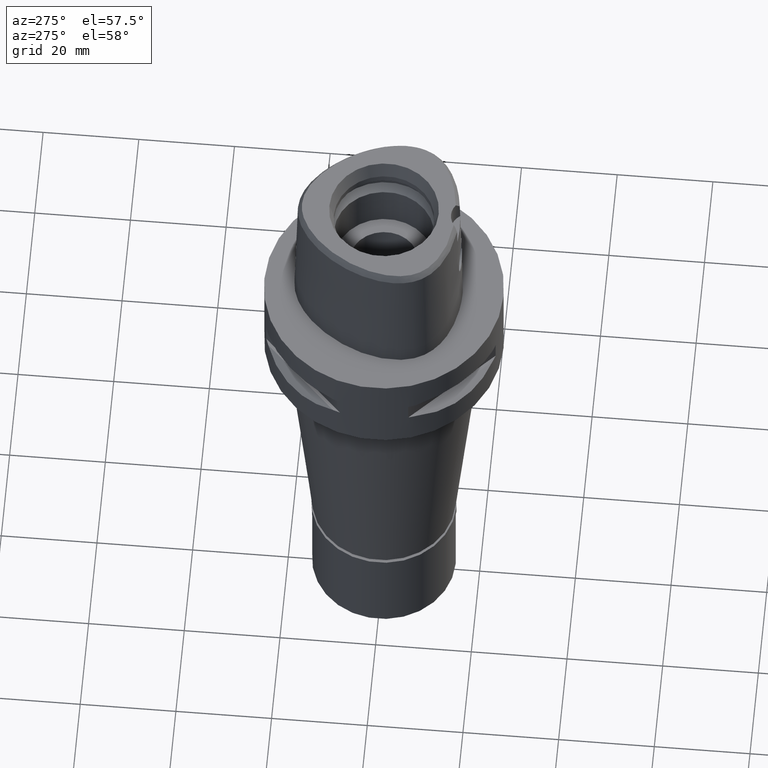
[diagram: clean part render]
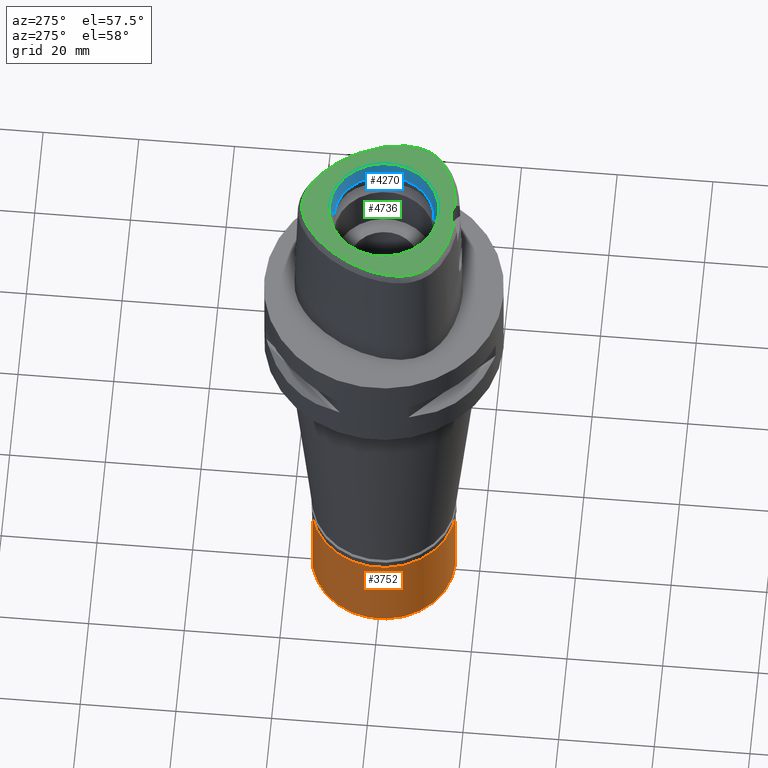
[diagram: same view with three faces highlighted in distinct colors, each labeled with its STEP entity id]
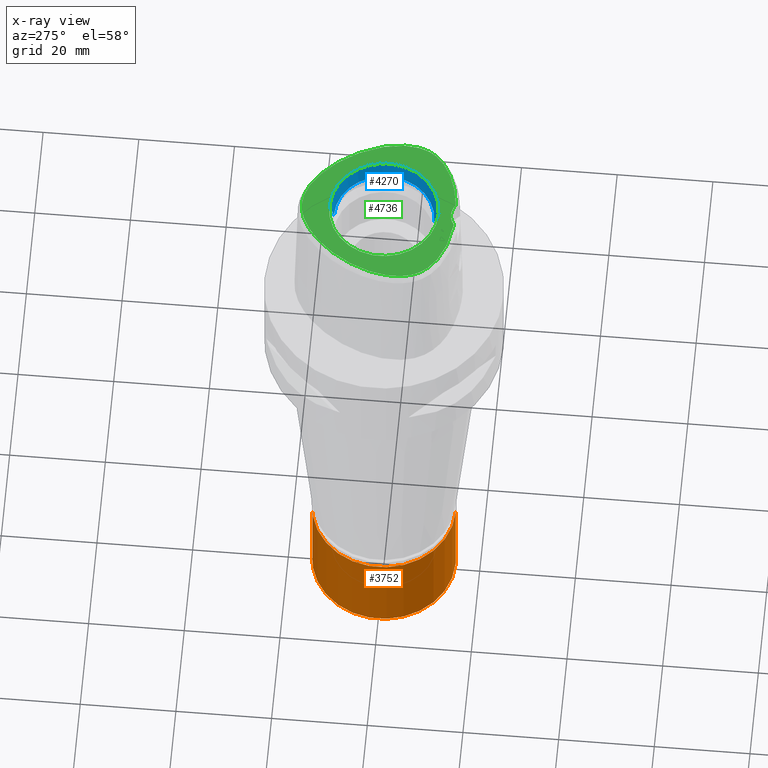
[diagram: x-ray of the same camera — body ghosted, the three highlighted faces saturated]
A machine part, auxiliary view with three faces highlighted in distinct colors.
The next image is the same camera in x-ray (body ghosted, the three faces saturated) — at least one of them is partly hidden behind the body in this view.
Their STEP definitions:

[orange] entity #3752 — the highlighted cylindrical surface (partial cylindrical patch) has radius 15 mm, axis along (0, 0, -1).
#308 = ORIENTED_EDGE ( 'NONE', *, *, #2338, .T. ) ;
#319 = ORIENTED_EDGE ( 'NONE', *, *, #4921, .T. ) ;
#386 = CIRCLE ( 'NONE', #697, 15.00000000000000000 ) ;
#595 = CARTESIAN_POINT ( 'NONE',  ( 0.0000000000000000000, 15.00000000000000000, -2.000000000000000000 ) ) ;
#616 = CARTESIAN_POINT ( 'NONE',  ( 0.0000000000000000000, 0.0000000000000000000, -22.00000000000000000 ) ) ;
#697 = AXIS2_PLACEMENT_3D ( 'NONE', #3966, #3538, #1699 ) ;
#732 = CYLINDRICAL_SURFACE ( 'NONE', #1093, 15.00000000000000000 ) ;
#759 = ORIENTED_EDGE ( 'NONE', *, *, #2461, .F. ) ;
#985 = DIRECTION ( 'NONE',  ( 0.0000000000000000000, 1.000000000000000000, 0.0000000000000000000 ) ) ;
#1093 = AXIS2_PLACEMENT_3D ( 'NONE', #1510, #4566, #2600 ) ;
#1228 = CARTESIAN_POINT ( 'NONE',  ( 0.0000000000000000000, 15.00000000000000000, -2.000000000000000000 ) ) ;
#1417 = VERTEX_POINT ( 'NONE', #3247 ) ;
#1510 = CARTESIAN_POINT ( 'NONE',  ( 0.0000000000000000000, 0.0000000000000000000, 0.0000000000000000000 ) ) ;
#1588 = EDGE_CURVE ( 'NONE', #4164, #3711, #4229, .T. ) ;
#1699 = DIRECTION ( 'NONE',  ( 0.0000000000000000000, -1.000000000000000000, 0.0000000000000000000 ) ) ;
#1714 = LINE ( 'NONE', #3607, #3755 ) ;
#1778 = DIRECTION ( 'NONE',  ( 0.0000000000000000000, 0.0000000000000000000, 1.000000000000000000 ) ) ;
#1834 = FACE_OUTER_BOUND ( 'NONE', #2196, .T. ) ;
#2196 = EDGE_LOOP ( 'NONE', ( #2725, #759, #319, #308 ) ) ;
#2338 = EDGE_CURVE ( 'NONE', #3948, #4164, #4661, .T. ) ;
#2461 = EDGE_CURVE ( 'NONE', #1417, #3711, #1714, .T. ) ;
#2600 = DIRECTION ( 'NONE',  ( 0.0000000000000000000, -1.000000000000000000, 0.0000000000000000000 ) ) ;
#2657 = CARTESIAN_POINT ( 'NONE',  ( 0.0000000000000000000, -15.00000000000000000, -22.00000000000000000 ) ) ;
#2725 = ORIENTED_EDGE ( 'NONE', *, *, #1588, .T. ) ;
#2752 = DIRECTION ( 'NONE',  ( 0.0000000000000000000, 0.0000000000000000000, -1.000000000000000000 ) ) ;
#2851 = DIRECTION ( 'NONE',  ( 0.0000000000000000000, 0.0000000000000000000, -1.000000000000000000 ) ) ;
#3247 = CARTESIAN_POINT ( 'NONE',  ( 0.0000000000000000000, -15.00000000000000000, -2.000000000000000000 ) ) ;
#3538 = DIRECTION ( 'NONE',  ( 0.0000000000000000000, 0.0000000000000000000, -1.000000000000000000 ) ) ;
#3545 = CARTESIAN_POINT ( 'NONE',  ( 0.0000000000000000000, 15.00000000000000000, -22.00000000000000000 ) ) ;
#3607 = CARTESIAN_POINT ( 'NONE',  ( 0.0000000000000000000, -15.00000000000000000, -2.000000000000000000 ) ) ;
#3711 = VERTEX_POINT ( 'NONE', #2657 ) ;
#3752 = ADVANCED_FACE ( 'NONE', ( #1834 ), #732, .T. ) ;
#3755 = VECTOR ( 'NONE', #2851, 1000.000000000000000 ) ;
#3948 = VERTEX_POINT ( 'NONE', #595 ) ;
#3966 = CARTESIAN_POINT ( 'NONE',  ( 0.0000000000000000000, 0.0000000000000000000, -2.000000000000000000 ) ) ;
#4164 = VERTEX_POINT ( 'NONE', #3545 ) ;
#4229 = CIRCLE ( 'NONE', #4316, 15.00000000000000000 ) ;
#4316 = AXIS2_PLACEMENT_3D ( 'NONE', #616, #1778, #985 ) ;
#4566 = DIRECTION ( 'NONE',  ( 0.0000000000000000000, 0.0000000000000000000, -1.000000000000000000 ) ) ;
#4634 = VECTOR ( 'NONE', #2752, 1000.000000000000000 ) ;
#4661 = LINE ( 'NONE', #1228, #4634 ) ;
#4921 = EDGE_CURVE ( 'NONE', #1417, #3948, #386, .T. ) ;

[blue] entity #4270 — the highlighted conical surface has half-angle 15 deg.
#47 = VECTOR ( 'NONE', #1481, 1000.000000000000114 ) ;
#297 = CONICAL_SURFACE ( 'NONE', #860, 10.96891108674999948, 0.2617993877991000029 ) ;
#379 = DIRECTION ( 'NONE',  ( 0.0000000000000000000, 0.0000000000000000000, 1.000000000000000000 ) ) ;
#405 = DIRECTION ( 'NONE',  ( 0.0000000000000000000, -1.000000000000000000, 0.0000000000000000000 ) ) ;
#807 = VERTEX_POINT ( 'NONE', #2230 ) ;
#820 = VERTEX_POINT ( 'NONE', #3381 ) ;
#851 = CIRCLE ( 'NONE', #3006, 10.50000000000000000 ) ;
#860 = AXIS2_PLACEMENT_3D ( 'NONE', #1907, #3429, #1605 ) ;
#981 = ORIENTED_EDGE ( 'NONE', *, *, #3712, .T. ) ;
#1004 = VECTOR ( 'NONE', #3488, 1000.000000000000114 ) ;
#1345 = EDGE_LOOP ( 'NONE', ( #2988, #4929, #981, #4617 ) ) ;
#1401 = DIRECTION ( 'NONE',  ( 0.0000000000000000000, -1.000000000000000000, 0.0000000000000000000 ) ) ;
#1416 = CARTESIAN_POINT ( 'NONE',  ( 0.0000000000000000000, -11.43782217350000074, 30.00000000000000000 ) ) ;
#1468 = VERTEX_POINT ( 'NONE', #1416 ) ;
#1481 = DIRECTION ( 'NONE',  ( 0.0000000000000000000, -0.2588190451023999472, 0.9659258262891006197 ) ) ;
#1496 = CARTESIAN_POINT ( 'NONE',  ( 0.0000000000000000000, 10.50000000000000000, 26.50000000000000000 ) ) ;
#1605 = DIRECTION ( 'NONE',  ( 0.0000000000000000000, 1.000000000000000000, 0.0000000000000000000 ) ) ;
#1816 = AXIS2_PLACEMENT_3D ( 'NONE', #2132, #4834, #1401 ) ;
#1845 = VERTEX_POINT ( 'NONE', #3865 ) ;
#1907 = CARTESIAN_POINT ( 'NONE',  ( 0.0000000000000000000, 1.570609519905999910E-14, 28.25000000000000000 ) ) ;
#2132 = CARTESIAN_POINT ( 'NONE',  ( 0.0000000000000000000, 1.570609519905999910E-14, 30.00000000000000000 ) ) ;
#2230 = CARTESIAN_POINT ( 'NONE',  ( 0.0000000000000000000, 11.43782217350000074, 30.00000000000000000 ) ) ;
#2921 = EDGE_CURVE ( 'NONE', #1845, #807, #4248, .T. ) ;
#2988 = ORIENTED_EDGE ( 'NONE', *, *, #2921, .F. ) ;
#3006 = AXIS2_PLACEMENT_3D ( 'NONE', #3838, #379, #405 ) ;
#3381 = CARTESIAN_POINT ( 'NONE',  ( 0.0000000000000000000, -10.50000000000000000, 26.50000000000000000 ) ) ;
#3383 = CARTESIAN_POINT ( 'NONE',  ( 0.0000000000000000000, -10.50000000000000000, 26.50000000000000000 ) ) ;
#3429 = DIRECTION ( 'NONE',  ( 0.0000000000000000000, 0.0000000000000000000, 1.000000000000000000 ) ) ;
#3442 = EDGE_CURVE ( 'NONE', #1468, #807, #4534, .T. ) ;
#3488 = DIRECTION ( 'NONE',  ( 0.0000000000000000000, 0.2588190451023999472, 0.9659258262891006197 ) ) ;
#3596 = EDGE_CURVE ( 'NONE', #820, #1845, #851, .T. ) ;
#3712 = EDGE_CURVE ( 'NONE', #820, #1468, #4205, .T. ) ;
#3838 = CARTESIAN_POINT ( 'NONE',  ( 0.0000000000000000000, 1.570609519905999910E-14, 26.50000000000000000 ) ) ;
#3865 = CARTESIAN_POINT ( 'NONE',  ( 0.0000000000000000000, 10.50000000000000000, 26.50000000000000000 ) ) ;
#4205 = LINE ( 'NONE', #3383, #47 ) ;
#4248 = LINE ( 'NONE', #1496, #1004 ) ;
#4270 = ADVANCED_FACE ( 'NONE', ( #4510 ), #297, .F. ) ;
#4510 = FACE_OUTER_BOUND ( 'NONE', #1345, .T. ) ;
#4534 = CIRCLE ( 'NONE', #1816, 11.43782217350000074 ) ;
#4617 = ORIENTED_EDGE ( 'NONE', *, *, #3442, .T. ) ;
#4834 = DIRECTION ( 'NONE',  ( 0.0000000000000000000, 0.0000000000000000000, 1.000000000000000000 ) ) ;
#4929 = ORIENTED_EDGE ( 'NONE', *, *, #3596, .F. ) ;

[green] entity #4736 — the highlighted planar face has unit normal (0, 0, 1).
#124 = CARTESIAN_POINT ( 'NONE',  ( 0.0000000000000000000, -18.00000000000000000, 30.00000000000000000 ) ) ;
#180 = CARTESIAN_POINT ( 'NONE',  ( 11.36765809995435106, -12.04801986072539322, 30.00000000000443379 ) ) ;
#190 = ORIENTED_EDGE ( 'NONE', *, *, #255, .F. ) ;
#200 = CARTESIAN_POINT ( 'NONE',  ( 12.04928217776555499, -11.59002493207462514, 29.99999999999659295 ) ) ;
#204 = CARTESIAN_POINT ( 'NONE',  ( -5.437876102061757422, -14.35707869331250208, 29.99999999999869260 ) ) ;
#233 = CARTESIAN_POINT ( 'NONE',  ( 8.816245487877313991, -13.33426548781544341, 30.00000000000358824 ) ) ;
#236 = CARTESIAN_POINT ( 'NONE',  ( -2.406542353497000075, -14.80491723099000012, 30.00000000000000000 ) ) ;
#255 = EDGE_CURVE ( 'NONE', #1484, #680, #3533, .T. ) ;
#257 = CARTESIAN_POINT ( 'NONE',  ( 14.44767169633531623, -9.224476417586206622, 30.00000000000325073 ) ) ;
#279 = CARTESIAN_POINT ( 'NONE',  ( 3.772905803808435543, 16.33508552419539583, 30.00000000000495604 ) ) ;
#282 = CARTESIAN_POINT ( 'NONE',  ( -14.01158736113486825, 5.375902008632066575, 29.99999999998948041 ) ) ;
#291 = CIRCLE ( 'NONE', #4772, 11.43782217350000074 ) ;
#315 = AXIS2_PLACEMENT_3D ( 'NONE', #124, #4640, #902 ) ;
#561 = CARTESIAN_POINT ( 'NONE',  ( 15.51702143705311876, -7.148634146069255735, 29.99999999999807798 ) ) ;
#583 = CARTESIAN_POINT ( 'NONE',  ( 9.755668685253413130, -12.92551394022960487, 29.99999999999576517 ) ) ;
#586 = CARTESIAN_POINT ( 'NONE',  ( -9.750168658359363860, -12.92810664734441062, 29.99999999999933564 ) ) ;
#601 = CARTESIAN_POINT ( 'NONE',  ( 10.60500548643838847, -12.49469941439629039, 30.00000000000041922 ) ) ;
#604 = CARTESIAN_POINT ( 'NONE',  ( -10.60021164902653723, -12.49731984708751220, 29.99999999999011280 ) ) ;
#632 = CARTESIAN_POINT ( 'NONE',  ( 7.783816186093613254, -13.71424622167329055, 29.99999999999985079 ) ) ;
#636 = CARTESIAN_POINT ( 'NONE',  ( -4.150496093831315569, -14.59917355180355969, 29.99999999999285549 ) ) ;
#656 = CARTESIAN_POINT ( 'NONE',  ( 15.99982784345714215, -5.151471542954656258, 29.99999999999363354 ) ) ;
#660 = EDGE_LOOP ( 'NONE', ( #3492, #2981 ) ) ;
#680 = VERTEX_POINT ( 'NONE', #1536 ) ;
#682 = CARTESIAN_POINT ( 'NONE',  ( -13.38439869302004759, 6.635703175840563794, 29.99999999999474198 ) ) ;
#701 = CARTESIAN_POINT ( 'NONE',  ( 2.406543924163999648, -14.80491841401999942, 30.00000000000000000 ) ) ;
#783 = CARTESIAN_POINT ( 'NONE',  ( -1.772880577022188486, 16.97196055716501206, 29.99999999999358025 ) ) ;
#807 = VERTEX_POINT ( 'NONE', #2230 ) ;
#902 = DIRECTION ( 'NONE',  ( 0.6016359810410799591, 0.7987703964949736113, 0.0000000000000000000 ) ) ;
#954 = CARTESIAN_POINT ( 'NONE',  ( 14.55828366953405251, 4.114142377746066614, 30.00000000000204636 ) ) ;
#957 = EDGE_CURVE ( 'NONE', #680, #4300, #3241, .T. ) ;
#975 = CARTESIAN_POINT ( 'NONE',  ( 16.08569500455069701, -4.373922630229509778, 29.99999999999538502 ) ) ;
#977 = CARTESIAN_POINT ( 'NONE',  ( -12.68647747557377059, 7.869569494476014171, 29.99999999999479527 ) ) ;
#1034 = CARTESIAN_POINT ( 'NONE',  ( 4.499552315896580446, 15.99769543814335471, 30.00000000000355627 ) ) ;
#1038 = CARTESIAN_POINT ( 'NONE',  ( -14.44611813752892360, -9.226676124713348415, 29.99999999999121414 ) ) ;
#1061 = CARTESIAN_POINT ( 'NONE',  ( -6.650243356161019470, -14.05992414833953141, 29.99999999999774403 ) ) ;
#1187 = CARTESIAN_POINT ( 'NONE',  ( -6.301949014258999711E-11, 17.15328888647999861, 30.00000000000000000 ) ) ;
#1333 = CARTESIAN_POINT ( 'NONE',  ( 10.27891984618265298, 11.24296481357911404, 29.99999999999505818 ) ) ;
#1336 = CARTESIAN_POINT ( 'NONE',  ( -6.047371482395761610, 15.09400374235487163, 29.99999999999652189 ) ) ;
#1359 = CARTESIAN_POINT ( 'NONE',  ( -15.71065119879315830, -6.536303815290068542, 29.99999999999107558 ) ) ;
#1384 = CARTESIAN_POINT ( 'NONE',  ( -3.771910472265244785, 16.33551310926676692, 29.99999999999095479 ) ) ;
#1401 = DIRECTION ( 'NONE',  ( 0.0000000000000000000, -1.000000000000000000, 0.0000000000000000000 ) ) ;
#1405 = CARTESIAN_POINT ( 'NONE',  ( 3.130495111450597001, -14.73481892791950543, 30.00000000000001776 ) ) ;
#1407 = CARTESIAN_POINT ( 'NONE',  ( -10.27907733181847760, 11.24278573582526519, 29.99999999998881961 ) ) ;
#1416 = CARTESIAN_POINT ( 'NONE',  ( 0.0000000000000000000, -11.43782217350000074, 30.00000000000000000 ) ) ;
#1433 = CARTESIAN_POINT ( 'NONE',  ( 15.68929135224448501, 0.4919393172824306215, 30.00000000000252243 ) ) ;
#1436 = CARTESIAN_POINT ( 'NONE',  ( -15.68979199461547758, 0.4896967076518341511, 29.99999999999081268 ) ) ;
#1468 = VERTEX_POINT ( 'NONE', #1416 ) ;
#1473 = CARTESIAN_POINT ( 'NONE',  ( 0.0000000000000000000, 0.0000000000000000000, 30.00000000000000000 ) ) ;
#1484 = VERTEX_POINT ( 'NONE', #2543 ) ;
#1536 = CARTESIAN_POINT ( 'NONE',  ( -6.301949014258999711E-11, 17.15328888647999861, 30.00000000000000000 ) ) ;
#1642 = DIRECTION ( 'NONE',  ( 1.000000000000000000, 0.0000000000000000000, 0.0000000000000000000 ) ) ;
#1740 = CARTESIAN_POINT ( 'NONE',  ( 4.159771979224683669, -14.59766906204223247, 30.00000000000003908 ) ) ;
#1767 = CARTESIAN_POINT ( 'NONE',  ( 0.1912597614439882354, 17.15328888648454608, 30.00000000000263967 ) ) ;
#1770 = CARTESIAN_POINT ( 'NONE',  ( -16.12543283908974701, -3.535877041748584748, 29.99999999999610267 ) ) ;
#1789 = CARTESIAN_POINT ( 'NONE',  ( 14.08238499151751455, -9.704590128438827179, 29.99999999999970512 ) ) ;
#1791 = CARTESIAN_POINT ( 'NONE',  ( -15.29229544369903238, -7.721097396977731009, 29.99999999999415579 ) ) ;
#1810 = CARTESIAN_POINT ( 'NONE',  ( 8.557117433367597670, 13.07415149353518125, 30.00000000000477840 ) ) ;
#1813 = CARTESIAN_POINT ( 'NONE',  ( -11.92713521269658727, 9.060544494663611559, 29.99999999999157296 ) ) ;
#1816 = AXIS2_PLACEMENT_3D ( 'NONE', #2132, #4834, #1401 ) ;
#2092 = CARTESIAN_POINT ( 'NONE',  ( 13.19176257967602339, -10.65479018523067190, 30.00000000000106226 ) ) ;
#2108 = ORIENTED_EDGE ( 'NONE', *, *, #2343, .F. ) ;
#2114 = CARTESIAN_POINT ( 'NONE',  ( 5.446614459517848950, -14.35518554872922969, 29.99999999999900524 ) ) ;
#2132 = CARTESIAN_POINT ( 'NONE',  ( 0.0000000000000000000, 1.570609519905999910E-14, 30.00000000000000000 ) ) ;
#2136 = CARTESIAN_POINT ( 'NONE',  ( 6.048015628560739820, 15.09357031580012354, 30.00000000000314770 ) ) ;
#2138 = CARTESIAN_POINT ( 'NONE',  ( -15.51623783590893702, -7.150856098906506197, 29.99999999999640821 ) ) ;
#2158 = CARTESIAN_POINT ( 'NONE',  ( 14.76450668990880999, -8.742560395150521302, 30.00000000000274625 ) ) ;
#2161 = CARTESIAN_POINT ( 'NONE',  ( -8.809985523416244746, -13.33678107331446405, 29.99999999999772271 ) ) ;
#2182 = CARTESIAN_POINT ( 'NONE',  ( 6.863227115065921424, 14.51498137220334073, 29.99999999999718270 ) ) ;
#2212 = CARTESIAN_POINT ( 'NONE',  ( -7.776737509123218928, -13.71663015822221787, 29.99999999999818101 ) ) ;
#2230 = CARTESIAN_POINT ( 'NONE',  ( 0.0000000000000000000, 11.43782217350000074, 30.00000000000000000 ) ) ;
#2237 = ORIENTED_EDGE ( 'NONE', *, *, #957, .F. ) ;
#2343 = EDGE_CURVE ( 'NONE', #4300, #1484, #2475, .T. ) ;
#2462 = CARTESIAN_POINT ( 'NONE',  ( -6.301949014258999711E-11, 17.15328888647999861, 30.00000000000000000 ) ) ;
#2475 = CIRCLE ( 'NONE', #315, 4.000000000000000888 ) ;
#2487 = CARTESIAN_POINT ( 'NONE',  ( 15.04259016984626740, -8.247723288183502532, 29.99999999999995026 ) ) ;
#2507 = CARTESIAN_POINT ( 'NONE',  ( 12.65514534657125267, -11.12483370674451422, 30.00000000000234834 ) ) ;
#2530 = CARTESIAN_POINT ( 'NONE',  ( 11.11868440496376031, 10.19157821280299459, 29.99999999999320366 ) ) ;
#2543 = CARTESIAN_POINT ( 'NONE',  ( -2.406542353497000075, -14.80491723099000012, 30.00000000000000000 ) ) ;
#2557 = CARTESIAN_POINT ( 'NONE',  ( 5.258649622039831328, 15.58603480842768541, 29.99999999999665690 ) ) ;
#2581 = CARTESIAN_POINT ( 'NONE',  ( -14.08052509618427806, -9.706873108418569984, 29.99999999999269207 ) ) ;
#2859 = CARTESIAN_POINT ( 'NONE',  ( -9.420854217685333154, 12.20577134109777262, 29.99999999999306866 ) ) ;
#2882 = CARTESIAN_POINT ( 'NONE',  ( 12.68590586676745957, 7.870511070825999766, 30.00000000000601474 ) ) ;
#2884 = CARTESIAN_POINT ( 'NONE',  ( -15.99949242929452708, -5.153835065648437741, 29.99999999999850431 ) ) ;
#2903 = CARTESIAN_POINT ( 'NONE',  ( 3.078265684544157832, 16.60532678263340145, 29.99999999999936406 ) ) ;
#2905 = CARTESIAN_POINT ( 'NONE',  ( -3.077178008231732154, 16.60571267458043465, 29.99999999999714362 ) ) ;
#2930 = CARTESIAN_POINT ( 'NONE',  ( 2.406543924163999648, -14.80491841401999942, 30.00000000000000000 ) ) ;
#2932 = CARTESIAN_POINT ( 'NONE',  ( -6.862723739080847096, 14.51536572208619980, 29.99999999999768363 ) ) ;
#2943 = DIRECTION ( 'NONE',  ( 0.0000000000000000000, 0.0000000000000000000, 1.000000000000000000 ) ) ;
#2959 = CARTESIAN_POINT ( 'NONE',  ( -11.11900396222977250, 10.19116357425955677, 29.99999999999888445 ) ) ;
#2981 = ORIENTED_EDGE ( 'NONE', *, *, #3683, .F. ) ;
#2992 = PLANE ( 'NONE',  #3739 ) ;
#3060 = CARTESIAN_POINT ( 'NONE',  ( -2.411640998825433702, 16.81591728050575441, 29.99999999999772271 ) ) ;
#3238 = CARTESIAN_POINT ( 'NONE',  ( -16.08550869466693456, -4.376322360225630703, 29.99999999999780442 ) ) ;
#3241 = B_SPLINE_CURVE_WITH_KNOTS ( 'NONE', 3,
 ( #2462, #1767, #3329, #3708, #4864, #4791, #2903, #279, #1034, #2557, #2136, #2182, #4766, #1810, #3685, #1333, #2530, #3657, #2882, #4414, #4396, #954, #4370, #4015, #1433, #4463, #4060, #4086, #3993, #975, #656, #3283, #4034, #561, #4814, #2487, #2158, #257, #1789, #4438, #2092, #2507, #200, #180, #601, #583, #233, #632, #3304, #2114, #1740, #1405, #4835, #2930 ),
 .UNSPECIFIED., .F., .F.,
 ( 4, 1, 1, 1, 1, 1, 1, 1, 1, 1, 1, 1, 1, 1, 1, 1, 1, 1, 1, 1, 1, 1, 1, 1, 1, 1, 1, 1, 1, 1, 1, 1, 1, 1, 1, 1, 1, 1, 1, 1, 1, 1, 1, 1, 1, 1, 1, 1, 1, 1, 1, 4 ),
 ( 0.0000000000000000000, 0.01988587058640001182, 0.03977174117009996124, 0.05965761175399997285, 0.07954348233780006439, 0.09942935292160004490, 0.1193152235055000565, 0.1392010940893000370, 0.1590869646731999376, 0.1789728352568999981, 0.1988587058408000097, 0.2187445764247000213, 0.2386304470083999707, 0.2585163175922999823, 0.2784021881761000738, 0.2982880587598999433, 0.3181739293438000660, 0.3380597999276000465, 0.3579456705113999160, 0.3778315410952000075, 0.3977174116791000191, 0.4176032822630000307, 0.4374891528466999802, 0.4573750234305999918, 0.4772608940143999723, 0.4971467645981999528, 0.5170326351820999644, 0.5369185057659000559, 0.5568043763497000365, 0.5766902469335999371, 0.5965761175174000286, 0.6164619881012000091, 0.6363478586849999896, 0.6562337292689000012, 0.6761195998528000128, 0.6960054704364999623, 0.7158913410203999739, 0.7357772116042000654, 0.7556630821880000459, 0.7755489527718999465, 0.7954348233557000381, 0.8153206939395000186, 0.8352065645232999991, 0.8550924351072000107, 0.8749783056909999912, 0.8948641762747999717, 0.9147500468586799993, 0.9346359174424899718, 0.9545217880263200394, 0.9744076586101599879, 0.9942935291939859477, 1.000000000000000000 ),
 .UNSPECIFIED. ) ;
#3264 = CARTESIAN_POINT ( 'NONE',  ( -13.66338899149185337, -10.18351204678343791, 29.99999999999865352 ) ) ;
#3267 = EDGE_LOOP ( 'NONE', ( #2237, #190, #2108 ) ) ;
#3283 = CARTESIAN_POINT ( 'NONE',  ( 15.87349190488088269, -5.869792298898524052, 29.99999999999715783 ) ) ;
#3285 = CARTESIAN_POINT ( 'NONE',  ( -16.11283982316789931, -2.629907404753341726, 29.99999999999161915 ) ) ;
#3304 = CARTESIAN_POINT ( 'NONE',  ( 6.658132732489419503, -14.05774790739508440, 29.99999999999528200 ) ) ;
#3306 = CARTESIAN_POINT ( 'NONE',  ( -15.04149970408344217, -8.249836848501239217, 30.00000000000088463 ) ) ;
#3315 = FACE_BOUND ( 'NONE', #660, .T. ) ;
#3329 = CARTESIAN_POINT ( 'NONE',  ( 0.5691917915717104037, 17.14006060249568719, 30.00000000000319034 ) ) ;
#3331 = CARTESIAN_POINT ( 'NONE',  ( -11.36350786442218030, -12.05063008428528804, 29.99999999998925659 ) ) ;
#3388 = CARTESIAN_POINT ( 'NONE',  ( -0.5679008307150209545, 17.14013367087623507, 29.99999999999347366 ) ) ;
#3403 = CARTESIAN_POINT ( 'NONE',  ( 0.0000000000000000000, 1.570609519905999910E-14, 30.00000000000000000 ) ) ;
#3430 = DIRECTION ( 'NONE',  ( 0.0000000000000000000, 0.0000000000000000000, 1.000000000000000000 ) ) ;
#3442 = EDGE_CURVE ( 'NONE', #1468, #807, #4534, .T. ) ;
#3492 = ORIENTED_EDGE ( 'NONE', *, *, #3442, .F. ) ;
#3533 = B_SPLINE_CURVE_WITH_KNOTS ( 'NONE', 3,
 ( #236, #4089, #4017, #636, #204, #1061, #2212, #2161, #586, #604, #3331, #4868, #3687, #4496, #3264, #2581, #1038, #4794, #3306, #1791, #2138, #1359, #4468, #2884, #3238, #1770, #3285, #4036, #4111, #1436, #3710, #4838, #4417, #282, #682, #977, #1813, #2959, #1407, #2859, #3738, #4769, #2932, #1336, #4398, #4817, #1384, #2905, #3060, #783, #4590, #3388, #3814, #1187 ),
 .UNSPECIFIED., .F., .F.,
 ( 4, 1, 1, 1, 1, 1, 1, 1, 1, 1, 1, 1, 1, 1, 1, 1, 1, 1, 1, 1, 1, 1, 1, 1, 1, 1, 1, 1, 1, 1, 1, 1, 1, 1, 1, 1, 1, 1, 1, 1, 1, 1, 1, 1, 1, 1, 1, 1, 1, 1, 1, 4 ),
 ( 0.0000000000000000000, 0.005566907331700066131, 0.02545556918509994659, 0.04534423103860008020, 0.06523289289190004059, 0.08512155474529992105, 0.1050102165987000236, 0.1248988784521999351, 0.1447875403055000065, 0.1646762021588999980, 0.1845648640122999895, 0.2044535258655999499, 0.2243421877191000835, 0.2442308495724999640, 0.2641195114257999244, 0.2840081732792000269, 0.3038968351325999073, 0.3237854969860000098, 0.3436741588394000013, 0.3635628206927999928, 0.3834514825461999843, 0.4033401443995000557, 0.4232288062529999673, 0.4431174681064000698, 0.4630061299597000302, 0.4828947918130999106, 0.5027834536666000442, 0.5226721155199000046, 0.5425607773732999961, 0.5624494392267000986, 0.5823381010799999480, 0.6022267629334999706, 0.6221154247869000731, 0.6420040866403000646, 0.6618927484936000250, 0.6817814103470000164, 0.7016700722005000390, 0.7215587340537999994, 0.7414473959071999909, 0.7613360577605999824, 0.7812247196139999739, 0.8011133814673999654, 0.8210020433207999568, 0.8408907051741000283, 0.8607793670275000197, 0.8806680288810000423, 0.9005566907343299787, 0.9204453525877199782, 0.9403340144411099777, 0.9602226762944999772, 0.9801113381478899766, 1.000000000000000000 ),
 .UNSPECIFIED. ) ;
#3657 = CARTESIAN_POINT ( 'NONE',  ( 11.92667412982301833, 9.061218325782743221, 29.99999999999312905 ) ) ;
#3683 = EDGE_CURVE ( 'NONE', #807, #1468, #291, .T. ) ;
#3685 = CARTESIAN_POINT ( 'NONE',  ( 9.420872132874885452, 12.20574557692233597, 30.00000000000179767 ) ) ;
#3687 = CARTESIAN_POINT ( 'NONE',  ( -12.65209017756332166, -11.12734424253431698, 29.99999999999610267 ) ) ;
#3708 = CARTESIAN_POINT ( 'NONE',  ( 1.161482229273851807, 17.07843133414289483, 30.00000000000169109 ) ) ;
#3710 = CARTESIAN_POINT ( 'NONE',  ( -15.39727819201124603, 1.655076005306016507, 29.99999999999990052 ) ) ;
#3738 = CARTESIAN_POINT ( 'NONE',  ( -8.556928701965912154, 13.07433695899075410, 29.99999999999074163 ) ) ;
#3739 = AXIS2_PLACEMENT_3D ( 'NONE', #1473, #2943, #1642 ) ;
#3814 = CARTESIAN_POINT ( 'NONE',  ( -0.1909045559980219742, 17.15328888648678074, 29.99999999999529265 ) ) ;
#3993 = CARTESIAN_POINT ( 'NONE',  ( 16.12546998862759651, -3.533461825553732005, 30.00000000000294165 ) ) ;
#4015 = CARTESIAN_POINT ( 'NONE',  ( 15.39668103802213395, 1.657188505494671116, 29.99999999999377565 ) ) ;
#4017 = CARTESIAN_POINT ( 'NONE',  ( -3.123276563984711984, -14.73562494724885141, 29.99999999999723599 ) ) ;
#4034 = CARTESIAN_POINT ( 'NONE',  ( 15.71128456931716499, -6.534031654963753155, 30.00000000000649791 ) ) ;
#4036 = CARTESIAN_POINT ( 'NONE',  ( -16.04083576397644961, -1.656498942829281118, 29.99999999999215561 ) ) ;
#4060 = CARTESIAN_POINT ( 'NONE',  ( 16.04058509949204847, -1.654113685487843322, 29.99999999999898392 ) ) ;
#4086 = CARTESIAN_POINT ( 'NONE',  ( 16.11273027396860158, -2.627494158580952810, 29.99999999999823075 ) ) ;
#4089 = CARTESIAN_POINT ( 'NONE',  ( -2.535517866336248538, -14.79323888262026365, 30.00000000000096989 ) ) ;
#4111 = CARTESIAN_POINT ( 'NONE',  ( -15.90223487644188971, -0.6162487013685692405, 29.99999999999325695 ) ) ;
#4300 = VERTEX_POINT ( 'NONE', #701 ) ;
#4370 = CARTESIAN_POINT ( 'NONE',  ( 15.02033012161840020, 2.869071121502582145, 29.99999999999977618 ) ) ;
#4396 = CARTESIAN_POINT ( 'NONE',  ( 14.01089202938723055, 5.377385268372155025, 29.99999999999354117 ) ) ;
#4398 = CARTESIAN_POINT ( 'NONE',  ( -5.257871200568303038, 15.58649213537111677, 29.99999999999618083 ) ) ;
#4414 = CARTESIAN_POINT ( 'NONE',  ( 13.38374903490226586, 6.636915464740803294, 30.00000000000228795 ) ) ;
#4417 = CARTESIAN_POINT ( 'NONE',  ( -14.55898035934170665, 4.112421202111456786, 29.99999999999912603 ) ) ;
#4438 = CARTESIAN_POINT ( 'NONE',  ( 13.66559393375132991, -10.18115111193436029, 30.00000000000189360 ) ) ;
#4463 = CARTESIAN_POINT ( 'NONE',  ( 15.90185233182321234, -0.6139199331563485185, 29.99999999999507949 ) ) ;
#4468 = CARTESIAN_POINT ( 'NONE',  ( -15.87300767660287626, -5.872112237379088384, 29.99999999999541345 ) ) ;
#4496 = CARTESIAN_POINT ( 'NONE',  ( -13.18915979442067687, -10.65722997876902411, 29.99999999999826983 ) ) ;
#4534 = CIRCLE ( 'NONE', #1816, 11.43782217350000074 ) ;
#4590 = CARTESIAN_POINT ( 'NONE',  ( -1.160151454488706158, 17.07862209883172611, 29.99999999998777511 ) ) ;
#4611 = DIRECTION ( 'NONE',  ( 0.0000000000000000000, 1.000000000000000000, 0.0000000000000000000 ) ) ;
#4640 = DIRECTION ( 'NONE',  ( 0.0000000000000000000, 0.0000000000000000000, 1.000000000000000000 ) ) ;
#4736 = ADVANCED_FACE ( 'NONE', ( #4905, #3315 ), #2992, .T. ) ;
#4766 = CARTESIAN_POINT ( 'NONE',  ( 7.700998872107177817, 13.84384558891763106, 30.00000000000076739 ) ) ;
#4769 = CARTESIAN_POINT ( 'NONE',  ( -7.700642921101993110, 13.84415306341814755, 29.99999999999842970 ) ) ;
#4772 = AXIS2_PLACEMENT_3D ( 'NONE', #3403, #3430, #4611 ) ;
#4791 = CARTESIAN_POINT ( 'NONE',  ( 2.412811123804833535, 16.81558681049820336, 30.00000000000575895 ) ) ;
#4794 = CARTESIAN_POINT ( 'NONE',  ( -14.76322153899969614, -8.744676018999291145, 29.99999999999215916 ) ) ;
#4814 = CARTESIAN_POINT ( 'NONE',  ( 15.29323375805109997, -7.718923543003036514, 29.99999999999888090 ) ) ;
#4817 = CARTESIAN_POINT ( 'NONE',  ( -4.498660734199246392, 15.99814720005784530, 29.99999999999344169 ) ) ;
#4834 = DIRECTION ( 'NONE',  ( 0.0000000000000000000, 0.0000000000000000000, 1.000000000000000000 ) ) ;
#4835 = CARTESIAN_POINT ( 'NONE',  ( 2.538962679605597739, -14.79292722369919311, 30.00000000000231282 ) ) ;
#4838 = CARTESIAN_POINT ( 'NONE',  ( -15.02099409651178874, 2.867135356160835702, 30.00000000000028422 ) ) ;
#4864 = CARTESIAN_POINT ( 'NONE',  ( 1.774127352511263522, 16.97169788999119788, 30.00000000000009237 ) ) ;
#4868 = CARTESIAN_POINT ( 'NONE',  ( -12.04571048959546786, -11.59259605427006257, 29.99999999999477396 ) ) ;
#4905 = FACE_OUTER_BOUND ( 'NONE', #3267, .T. ) ;